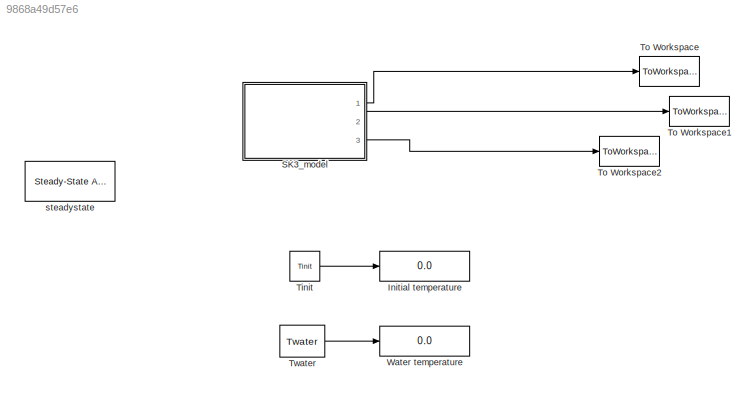
MODEL slx_9868a49d57e6
KIND model
CONFIG AbsTol = auto
CONFIG EnableMultiTasking = off
CONFIG FixedStep = auto
CONFIG MaxStep = auto
CONFIG MinStep = auto
CONFIG RelTol = 1e-3
CONFIG SampleTimeConstraint = Unconstrained
CONFIG Solver = ode23tb
CONFIG SolverName = ode23tb
CONFIG StartTime = 0.0
CONFIG StopTime = n_ss_cycles/fout
BLOCK [Display] Initial temperature
  Decimation = 1
  Ports = [1]
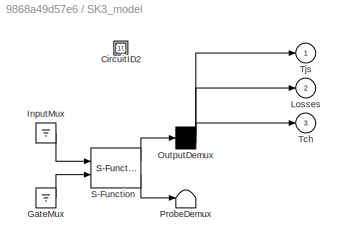
BLOCK [SubSystem] SK3_model
  CopyFcn = plecs('sl', 203);
  DeleteFcn = plecs('sl', 205);
  DestroyFcn = plecs('sl', 207);
  ErrorFcn = plerrorfcn
  InitFcn = plecs('sl', 214);
  LoadFcn = plecs('sl', 200);
  NameChangeFcn = plecs('sl', 210);
  OpenFcn = plecs('sl', 202);
  Ports = [0, 3]
  PostSaveFcn = plecs('sl', 201);
  PreCopyFcn = plecs('sl', 216);
  PreSaveFcn = plecs('sl', 211);
  RequestExecContextInheritance = off
  ShowPortLabels = FromPortBlockName
  StartFcn = plecs('sl', 208);
  StopFcn = plecs('sl', 209);
  UndoDeleteFcn = plecs('sl', 206);
BLOCK [SubSystem] SK3_model/ CircuitID2 
  Ports = []
  RequestExecContextInheritance = off
BLOCK [Ground] SK3_model/ GateMux 
BLOCK [Ground] SK3_model/ InputMux 
BLOCK [Demux] SK3_model/ OutputDemux 
  Outputs = [ 6 12 3 ]
  Ports = [1, 3]
BLOCK [Terminator] SK3_model/ ProbeDemux 
BLOCK [S-Function] SK3_model/ S-Function 
  EnableBusSupport = off
  FunctionName = plecs
  Ports = [2, 2]
  SFcnIsStateOwnerBlock = off
  SFunctionDeploymentMode = off
BLOCK [Outport] SK3_model/Losses
  IconDisplay = Port number
  Port = 2
  PortDimensions = 12
BLOCK [Outport] SK3_model/Tch
  IconDisplay = Port number
  Port = 3
  PortDimensions = 3
BLOCK [Outport] SK3_model/Tjs
  IconDisplay = Port number
  PortDimensions = 6
BLOCK [Constant] Tinit
  Value = Tinit
BLOCK [ToWorkspace] To Workspace
  MaxDataPoints = inf
  Ports = [1]
  SampleTime = -1
  VariableName = Tjs
BLOCK [ToWorkspace] To Workspace1
  MaxDataPoints = inf
  Ports = [1]
  SampleTime = -1
  VariableName = Losses
BLOCK [ToWorkspace] To Workspace2
  MaxDataPoints = inf
  Ports = [1]
  SampleTime = -1
  VariableName = Tch
BLOCK [Constant] Twater
  Value = Twater
BLOCK [Display] Water temperature
  Decimation = 1
  Ports = [1]
BLOCK [Reference] steadystate  REF=plecslib_extras/Analysis Tools/Steady-State Analysis
  Ports = []
  SourceBlock = plecslib_extras/Analysis Tools/Steady-State Analysis
  SourceType = PLECS Steady-State Analysis
LINE SK3_model:1 -> To Workspace:1
LINE SK3_model:2 -> To Workspace1:1
LINE SK3_model:3 -> To Workspace2:1
LINE Tinit:1 -> Initial temperature:1
LINE Twater:1 -> Water temperature:1
